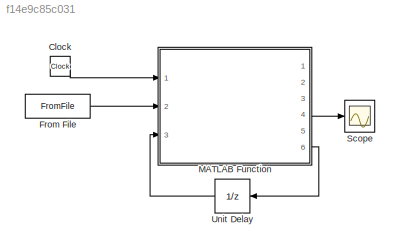
MODEL slx_f14e9c85c031
KIND model
CONFIG AbsTol = auto
CONFIG EnableMultiTasking = off
CONFIG FixedStep = auto
CONFIG MaxStep = auto
CONFIG MinStep = auto
CONFIG RelTol = 1e-3
CONFIG SampleTimeConstraint = Unconstrained
CONFIG Solver = VariableStepAuto
CONFIG SolverName = VariableStepAuto
CONFIG StartTime = 0.0
CONFIG StopTime = 200
BLOCK [Clock] Clock
BLOCK [FromFile] From File
  ExtrapolationAfterLastDataPoint = Hold last value
  ExtrapolationBeforeFirstDataPoint = Ground value
  FileName = xtmv_loc_0_0_year_2020_duration_0.00011416.mat
  InterpolationWithinTimeRange = Zero order hold
  SampleTime = 0
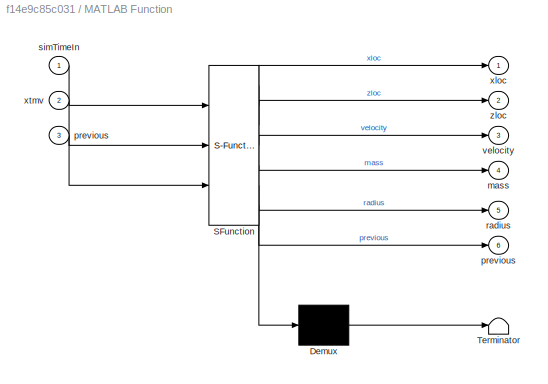
BLOCK [SubSystem] MATLAB Function
  ErrorFcn = Stateflow.Translate.translate
  PermitHierarchicalResolution = ExplicitOnly
  Ports = [3, 6]
  RequestExecContextInheritance = off
  SFBlockType = MATLAB Function
  TreatAsAtomicUnit = on
BLOCK [Demux] MATLAB Function/ Demux 
  Outputs = 1
  Ports = [1, 1]
BLOCK [S-Function] MATLAB Function/ SFunction 
  EnableBusSupport = on
  FunctionName = sf_sfun
  PortCounts = [3 7]
  Ports = [3, 7]
  SFcnIsStateOwnerBlock = off
  SFunctionDeploymentMode = off
  Tag = Stateflow S-Function samplingSystem 2
BLOCK [Terminator] MATLAB Function/ Terminator 
BLOCK [Outport] MATLAB Function/mass
  IconDisplay = Port number
  Port = 4
BLOCK [Outport] MATLAB Function/previous
  IconDisplay = Port number
  Port = 6
BLOCK [Inport] MATLAB Function/previous 
  IconDisplay = Port number
  Port = 3
BLOCK [Outport] MATLAB Function/radius
  IconDisplay = Port number
  Port = 5
BLOCK [Inport] MATLAB Function/simTimeIn
  IconDisplay = Port number
BLOCK [Outport] MATLAB Function/velocity
  IconDisplay = Port number
  Port = 3
BLOCK [Outport] MATLAB Function/xloc
  IconDisplay = Port number
BLOCK [Inport] MATLAB Function/xtmv
  IconDisplay = Port number
  Port = 2
BLOCK [Outport] MATLAB Function/zloc
  IconDisplay = Port number
  Port = 2
BLOCK [Scope] Scope
  Floating = off
  NumInputPorts = 1
  Ports = [1]
  ScopeSpecificationString = Simulink.scopes.TimeScopeBlockCfg('CurrentConfiguration', extmgr.ConfigurationSet(extmgr.Configuration('Core','General UI',true),extmgr.Configuration('Core','Source UI',true),extmgr.Configuration('Sources','WiredSimulink',true),extmgr.Configuration('Visuals','Time Domain',true,'SerializedDisplays',{struct('MinYLimReal','-0.01165','MaxYLimReal','0.10484','YLabelReal','','MinYLimMag','0.00000','MaxY...<+1411ch>
BLOCK [UnitDelay] Unit Delay
  InputProcessing = Elements as channels (sample based)
  SampleTime = -1
LINE Clock:1 -> MATLAB Function:1
LINE From File:1 -> MATLAB Function:2
LINE MATLAB Function:4 -> Scope:1
LINE MATLAB Function:6 -> Unit Delay:1
LINE Unit Delay:1 -> MATLAB Function:3
CHART MATLAB Function states=1 transitions=1
  STATE_LABEL 'eML_blk_kernel()'
  STATE_LABEL 'SCRIPT:\nfunction [xloc, zloc, velocity, mass, radius, previous] = meteoroidSampler(simTimeIn, xtmv, previous)\n    % This matlab block takes in the sim time and returns an impact\n    % only once when relevant. values are UNDEFINED otherwise.\n    UNDEFINED = 0;\n    % this is the mean density, ill adjust the program to output real\n    % densities later\n    density = 1.83; %g/cm^2\n    \n    % Set inita...<+973ch>'
